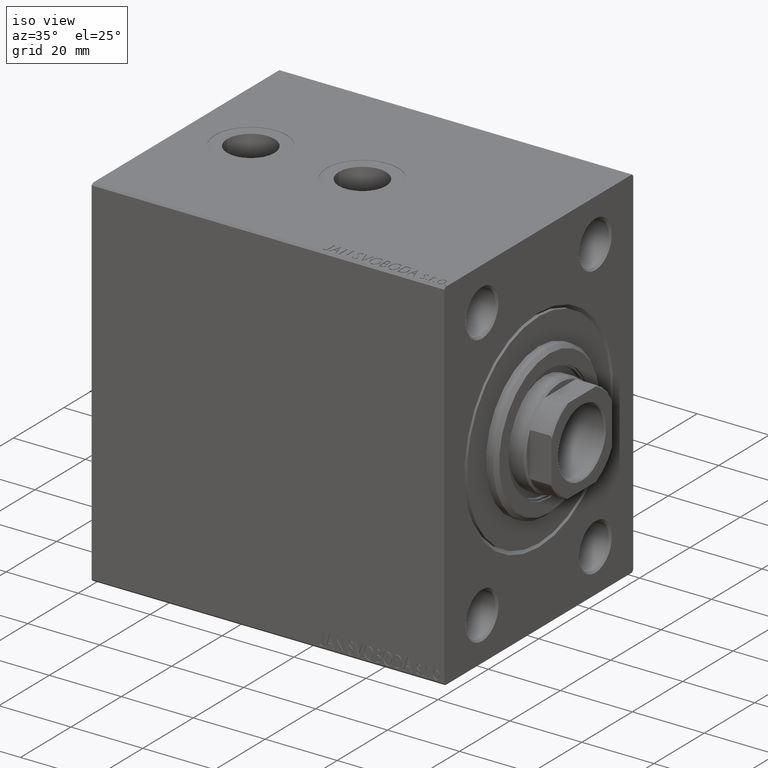
[diagram: clean part render]
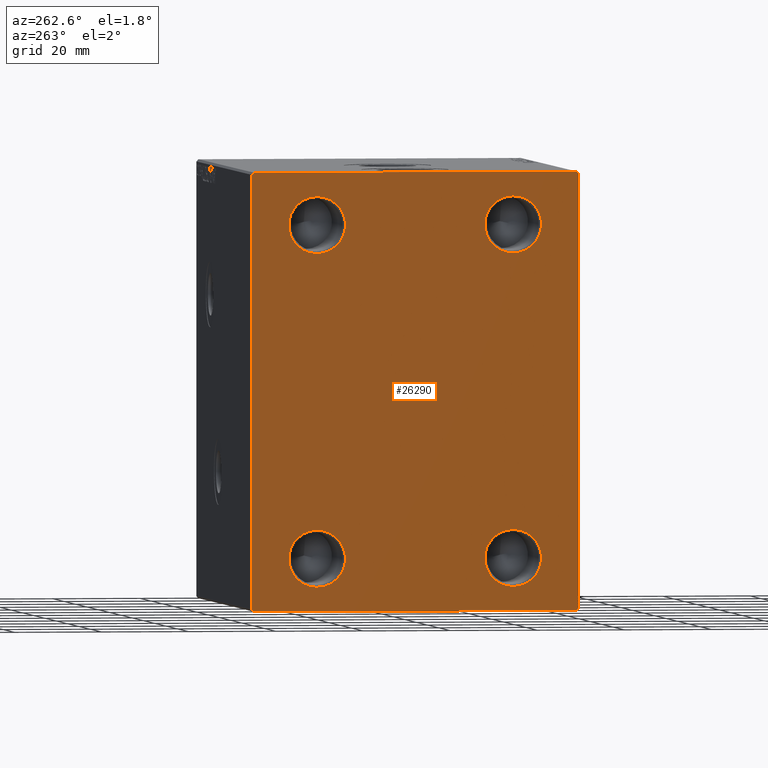
[diagram: tour spotlight — one face highlighted and labeled with its STEP entity id]
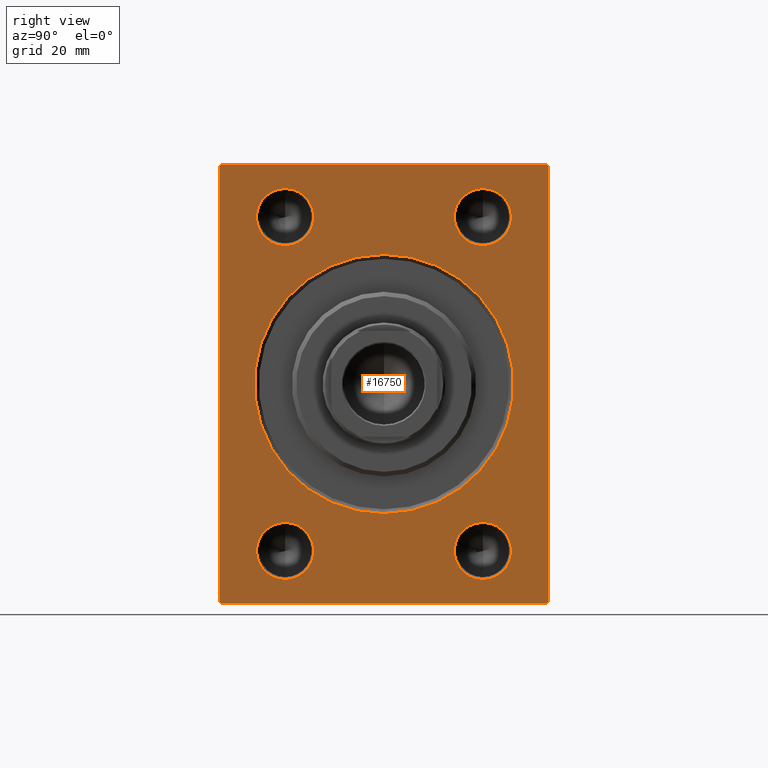
[diagram: tour spotlight — one face highlighted and labeled with its STEP entity id]
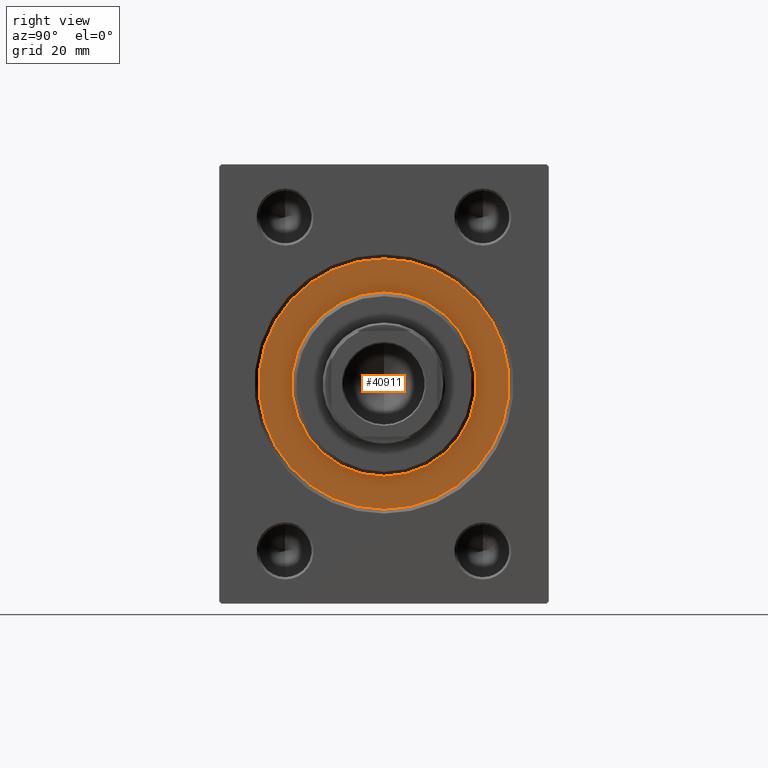
[diagram: tour spotlight — one face highlighted and labeled with its STEP entity id]
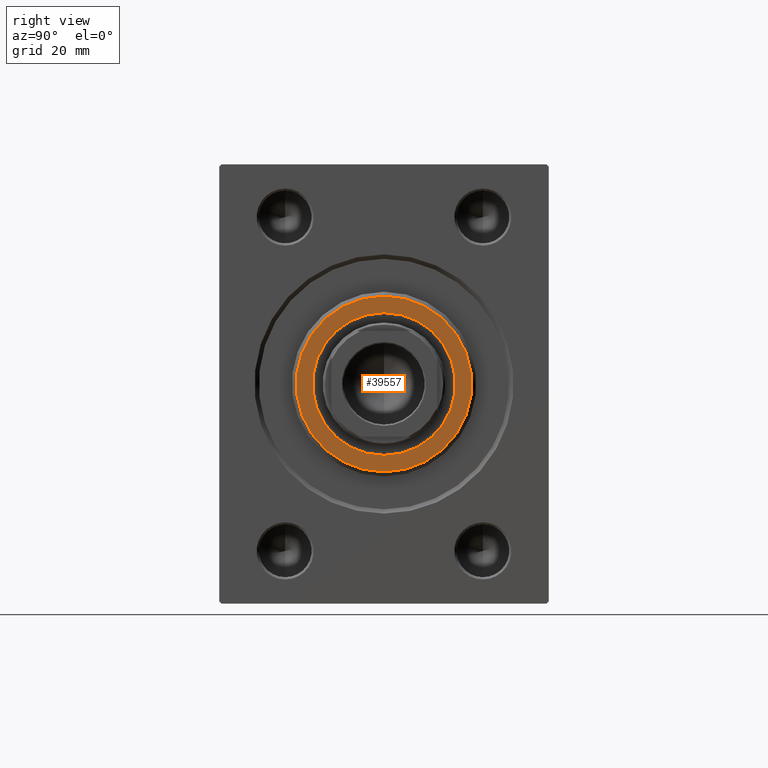
[diagram: tour spotlight — one face highlighted and labeled with its STEP entity id]
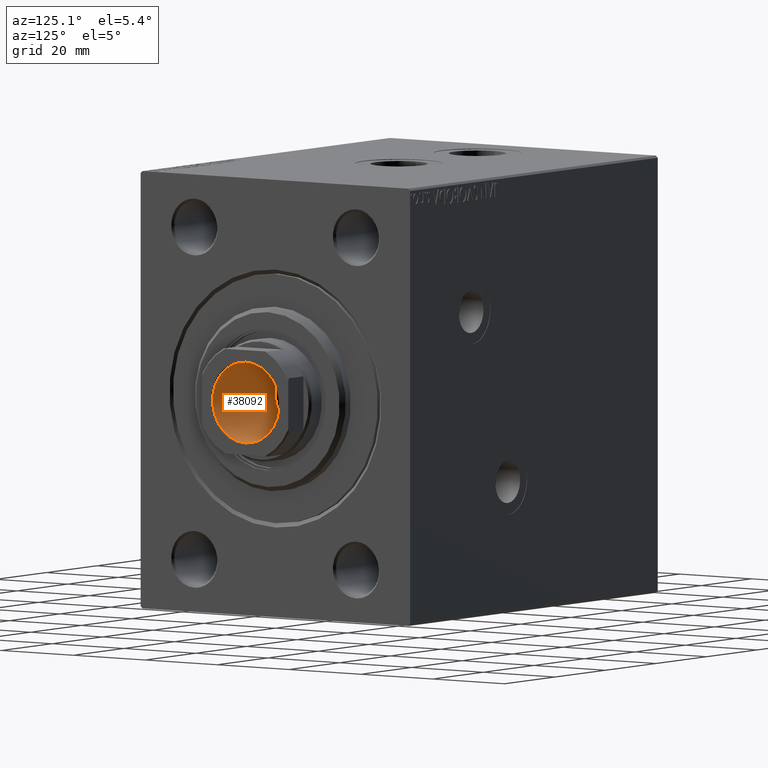
[diagram: tour spotlight — one face highlighted and labeled with its STEP entity id]
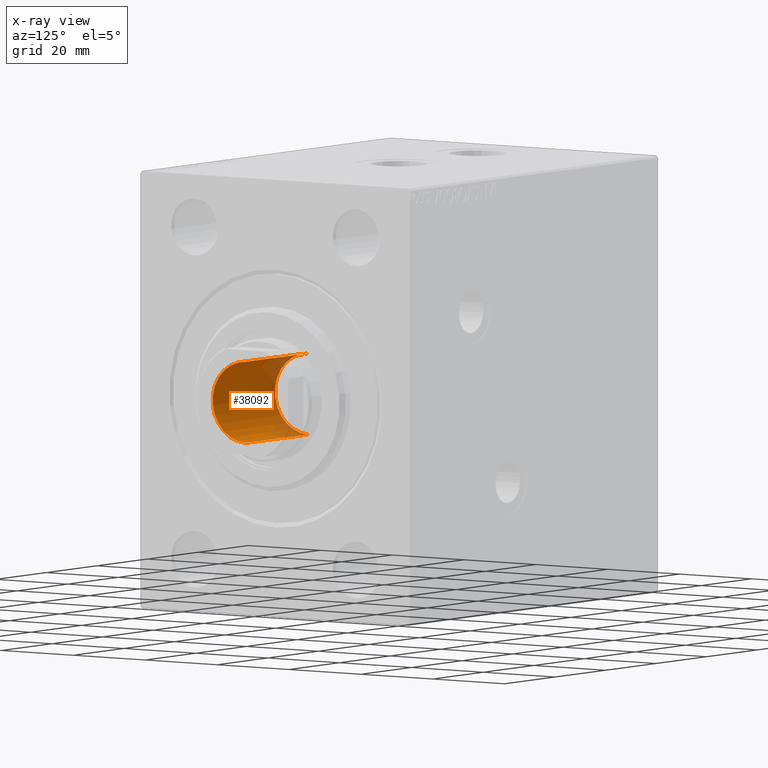
[diagram: x-ray of the same camera — body ghosted, this tour face saturated]
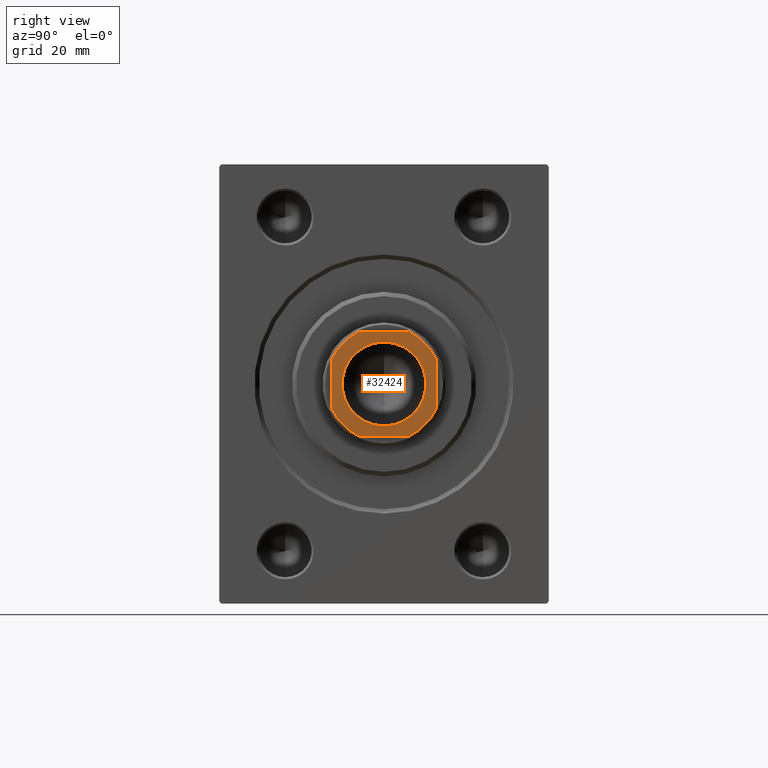
[diagram: tour spotlight — one face highlighted and labeled with its STEP entity id]
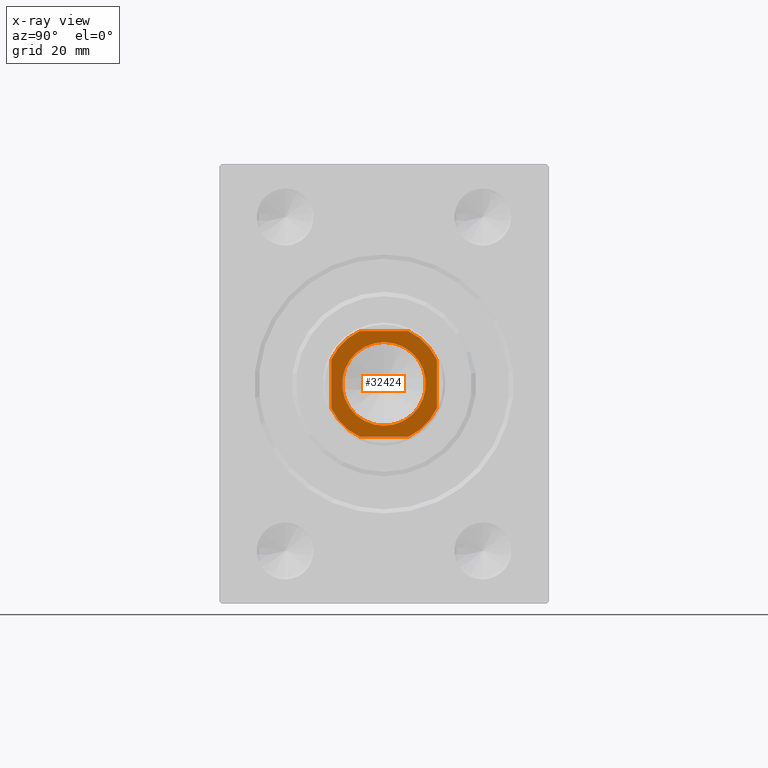
[diagram: x-ray of the same camera — body ghosted, this tour face saturated]
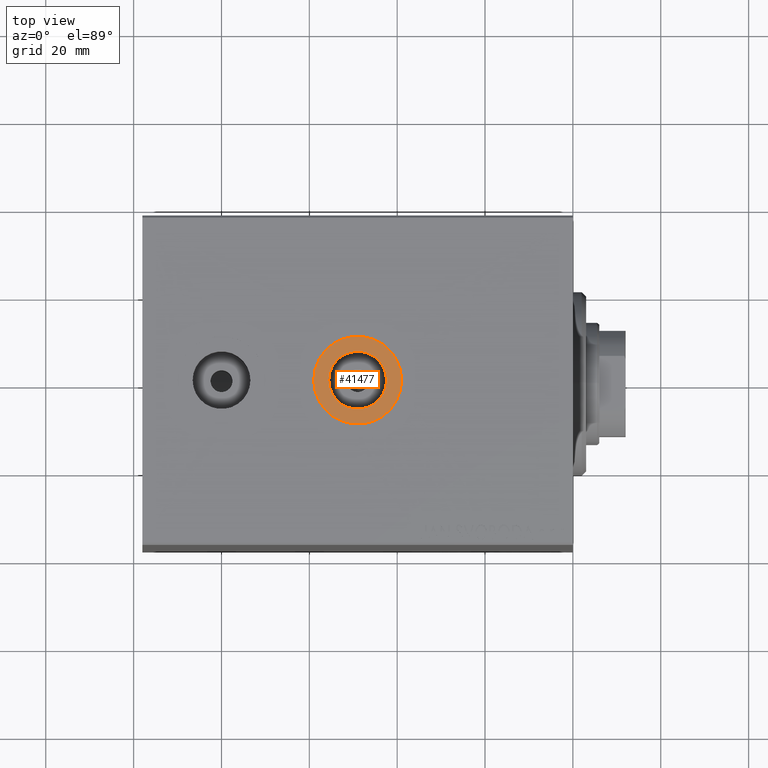
[diagram: tour spotlight — one face highlighted and labeled with its STEP entity id]
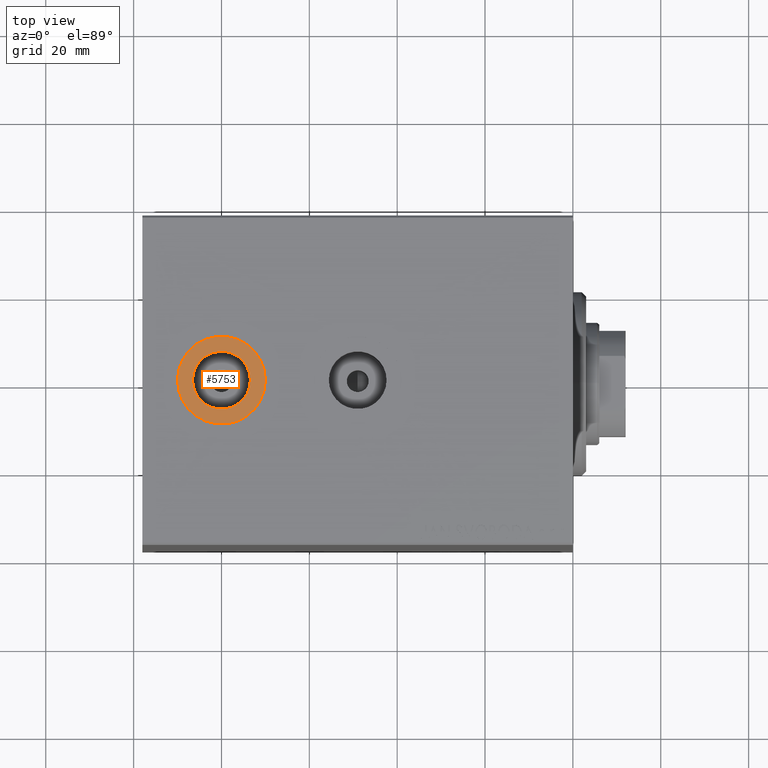
[diagram: tour spotlight — one face highlighted and labeled with its STEP entity id]
A machine part: a face-by-face anatomy tour. The part has 904 B-rep faces; the first image is the clean iso view, then the 8 largest visible faces are spotlighted one at a time (largest first), each with its STEP entity span.

Face 1 — auxiliary view, entity #26290. In plain terms, the highlighted planar face has unit normal (-1, -0, 0).
Definition (entity closure, byte-faithful):
#148 = ORIENTED_EDGE ( 'NONE', *, *, #13651, .T. ) ;
#178 = ORIENTED_EDGE ( 'NONE', *, *, #25590, .F. ) ;
#551 = VERTEX_POINT ( 'NONE', #9905 ) ;
#671 = VECTOR ( 'NONE', #26244, 1000.000000000000114 ) ;
#1176 = VECTOR ( 'NONE', #37887, 1000.000000000000114 ) ;
#1178 = VECTOR ( 'NONE', #15281, 1000.000000000000000 ) ;
#1989 = VECTOR ( 'NONE', #35915, 1000.000000000000000 ) ;
#2199 = VECTOR ( 'NONE', #16266, 1000.000000000000114 ) ;
#2321 = CARTESIAN_POINT ( 'NONE',  ( 98.00000000000000000, 22.49999999999999289, 44.49999999999999289 ) ) ;
#2489 = ORIENTED_EDGE ( 'NONE', *, *, #25415, .T. ) ;
#2725 = CARTESIAN_POINT ( 'NONE',  ( 98.00000000000000000, 22.49999999999999289, 31.50000000000000711 ) ) ;
#2865 = VERTEX_POINT ( 'NONE', #37324 ) ;
#2964 = AXIS2_PLACEMENT_3D ( 'NONE', #27240, #16566, #9957 ) ;
#3365 = ORIENTED_EDGE ( 'NONE', *, *, #25046, .T. ) ;
#3589 = VERTEX_POINT ( 'NONE', #2725 ) ;
#3683 = EDGE_LOOP ( 'NONE', ( #19829, #24425 ) ) ;
#4548 = CARTESIAN_POINT ( 'NONE',  ( 98.00000000000000000, 22.49999999999999289, -31.50000000000000711 ) ) ;
#5314 = VERTEX_POINT ( 'NONE', #11018 ) ;
#6032 = FACE_BOUND ( 'NONE', #19686, .T. ) ;
#6154 = CARTESIAN_POINT ( 'NONE',  ( 98.00000000000000000, -37.50000000000000000, 49.49999999999998579 ) ) ;
#6252 = CARTESIAN_POINT ( 'NONE',  ( 98.00000000000000000, 0.000000000000000000, 0.000000000000000000 ) ) ;
#7170 = LINE ( 'NONE', #7398, #36776 ) ;
#7398 = CARTESIAN_POINT ( 'NONE',  ( 98.00000000000000000, 37.49999999999998579, 50.00000000000001421 ) ) ;
#7442 = ORIENTED_EDGE ( 'NONE', *, *, #26249, .F. ) ;
#7579 = CARTESIAN_POINT ( 'NONE',  ( 98.00000000000000000, 22.49999999999999289, 38.00000000000000000 ) ) ;
#7681 = DIRECTION ( 'NONE',  ( 1.000000000000000000, -0.000000000000000000, -0.000000000000000000 ) ) ;
#8118 = CARTESIAN_POINT ( 'NONE',  ( 98.00000000000000000, 37.00000000000000000, -50.00000000000000000 ) ) ;
#8250 = DIRECTION ( 'NONE',  ( 1.000000000000000000, -0.000000000000000000, -0.000000000000000000 ) ) ;
#8788 = DIRECTION ( 'NONE',  ( 1.000000000000000000, -0.000000000000000000, -0.000000000000000000 ) ) ;
#8826 = DIRECTION ( 'NONE',  ( 0.000000000000000000, 0.000000000000000000, -1.000000000000000000 ) ) ;
#8870 = ORIENTED_EDGE ( 'NONE', *, *, #23806, .T. ) ;
#8928 = CARTESIAN_POINT ( 'NONE',  ( 98.00000000000000000, -22.50000000000000711, -38.00000000000000000 ) ) ;
#9215 = EDGE_LOOP ( 'NONE', ( #148, #8870, #44727, #34805, #3365, #25401, #19937, #2489 ) ) ;
#9657 = CARTESIAN_POINT ( 'NONE',  ( 98.00000000000000000, 43.49999999999998579, 43.49999999999998579 ) ) ;
#9905 = CARTESIAN_POINT ( 'NONE',  ( 98.00000000000000000, -22.50000000000000711, 31.50000000000000711 ) ) ;
#9957 = DIRECTION ( 'NONE',  ( 0.000000000000000000, 0.000000000000000000, -1.000000000000000000 ) ) ;
#10145 = EDGE_CURVE ( 'NONE', #24226, #2865, #32114, .T. ) ;
#10703 = AXIS2_PLACEMENT_3D ( 'NONE', #14506, #7681, #32030 ) ;
#11018 = CARTESIAN_POINT ( 'NONE',  ( 98.00000000000000000, -22.50000000000000711, -31.50000000000000711 ) ) ;
#11593 = LINE ( 'NONE', #26137, #1989 ) ;
#11868 = CARTESIAN_POINT ( 'NONE',  ( 98.00000000000000000, -37.50000000000000000, 49.99999999999998579 ) ) ;
#12374 = CARTESIAN_POINT ( 'NONE',  ( 98.00000000000000000, -43.49999999999999289, 43.49999999999999289 ) ) ;
#13085 = PLANE ( 'NONE',  #41427 ) ;
#13304 = DIRECTION ( 'NONE',  ( 1.000000000000000000, 0.000000000000000000, 0.000000000000000000 ) ) ;
#13344 = CARTESIAN_POINT ( 'NONE',  ( 98.00000000000000000, 36.99999999999997158, 50.00000000000001421 ) ) ;
#13651 = EDGE_CURVE ( 'NONE', #22449, #26635, #7170, .T. ) ;
#13660 = EDGE_CURVE ( 'NONE', #42424, #21911, #34695, .T. ) ;
#14009 = DIRECTION ( 'NONE',  ( 0.000000000000000000, 0.000000000000000000, -1.000000000000000000 ) ) ;
#14506 = CARTESIAN_POINT ( 'NONE',  ( 98.00000000000000000, 22.49999999999999289, 38.00000000000000000 ) ) ;
#14716 = ORIENTED_EDGE ( 'NONE', *, *, #20431, .F. ) ;
#15127 = VERTEX_POINT ( 'NONE', #4548 ) ;
#15281 = DIRECTION ( 'NONE',  ( 0.000000000000000000, 0.000000000000000000, -1.000000000000000000 ) ) ;
#16266 = DIRECTION ( 'NONE',  ( -0.000000000000000000, -0.7071067811865474617, 0.7071067811865474617 ) ) ;
#16313 = VERTEX_POINT ( 'NONE', #43006 ) ;
#16362 = VERTEX_POINT ( 'NONE', #18893 ) ;
#16566 = DIRECTION ( 'NONE',  ( 1.000000000000000000, -0.000000000000000000, -0.000000000000000000 ) ) ;
#17022 = VERTEX_POINT ( 'NONE', #19437 ) ;
#17246 = EDGE_CURVE ( 'NONE', #5314, #17022, #28125, .T. ) ;
#17405 = CARTESIAN_POINT ( 'NONE',  ( 98.00000000000000000, 43.50000000000000711, -43.50000000000000711 ) ) ;
#17416 = VERTEX_POINT ( 'NONE', #2321 ) ;
#17421 = CARTESIAN_POINT ( 'NONE',  ( 98.00000000000000000, -22.50000000000000711, 38.00000000000000000 ) ) ;
#17462 = CIRCLE ( 'NONE', #34207, 6.499999999999992006 ) ;
#18727 = ORIENTED_EDGE ( 'NONE', *, *, #31053, .F. ) ;
#18893 = CARTESIAN_POINT ( 'NONE',  ( 98.00000000000000000, -22.50000000000000711, 44.49999999999999289 ) ) ;
#19362 = VERTEX_POINT ( 'NONE', #38840 ) ;
#19437 = CARTESIAN_POINT ( 'NONE',  ( 98.00000000000000000, -22.50000000000000711, -44.49999999999999289 ) ) ;
#19665 = CIRCLE ( 'NONE', #20366, 6.499999999999992006 ) ;
#19686 = EDGE_LOOP ( 'NONE', ( #178, #41421 ) ) ;
#19829 = ORIENTED_EDGE ( 'NONE', *, *, #17246, .F. ) ;
#19901 = FACE_BOUND ( 'NONE', #34888, .T. ) ;
#19937 = ORIENTED_EDGE ( 'NONE', *, *, #37677, .T. ) ;
#20366 = AXIS2_PLACEMENT_3D ( 'NONE', #39941, #8788, #22647 ) ;
#20431 = EDGE_CURVE ( 'NONE', #551, #16362, #37676, .T. ) ;
#20735 = CARTESIAN_POINT ( 'NONE',  ( 98.00000000000000000, -43.50000000000000711, -43.50000000000000711 ) ) ;
#21448 = DIRECTION ( 'NONE',  ( 1.000000000000000000, -0.000000000000000000, -0.000000000000000000 ) ) ;
#21911 = VERTEX_POINT ( 'NONE', #37900 ) ;
#22449 = VERTEX_POINT ( 'NONE', #13344 ) ;
#22514 = EDGE_CURVE ( 'NONE', #16362, #551, #38437, .T. ) ;
#22575 = CIRCLE ( 'NONE', #2964, 6.499999999999992006 ) ;
#22647 = DIRECTION ( 'NONE',  ( 0.000000000000000000, 0.000000000000000000, -1.000000000000000000 ) ) ;
#22873 = LINE ( 'NONE', #20735, #26669 ) ;
#23085 = FACE_BOUND ( 'NONE', #29917, .T. ) ;
#23806 = EDGE_CURVE ( 'NONE', #26635, #24226, #43538, .T. ) ;
#24029 = DIRECTION ( 'NONE',  ( 1.000000000000000000, -0.000000000000000000, -0.000000000000000000 ) ) ;
#24226 = VERTEX_POINT ( 'NONE', #6154 ) ;
#24425 = ORIENTED_EDGE ( 'NONE', *, *, #40444, .F. ) ;
#24494 = CIRCLE ( 'NONE', #10703, 6.499999999999992006 ) ;
#25046 = EDGE_CURVE ( 'NONE', #16313, #42424, #25193, .T. ) ;
#25193 = LINE ( 'NONE', #25883, #34876 ) ;
#25401 = ORIENTED_EDGE ( 'NONE', *, *, #13660, .T. ) ;
#25415 = EDGE_CURVE ( 'NONE', #38652, #22449, #36963, .T. ) ;
#25590 = EDGE_CURVE ( 'NONE', #17416, #3589, #17462, .T. ) ;
#25883 = CARTESIAN_POINT ( 'NONE',  ( 98.00000000000000000, -37.50000000000000000, -50.00000000000001421 ) ) ;
#26137 = CARTESIAN_POINT ( 'NONE',  ( 98.00000000000000000, 37.50000000000000000, -50.00000000000000000 ) ) ;
#26244 = DIRECTION ( 'NONE',  ( 0.000000000000000000, -0.7071067811865474617, -0.7071067811865474617 ) ) ;
#26249 = EDGE_CURVE ( 'NONE', #15127, #19362, #19665, .T. ) ;
#26290 = ADVANCED_FACE ( 'NONE', ( #6032, #19901, #33784, #23085, #44252 ), #13085, .T. ) ;
#26328 = CARTESIAN_POINT ( 'NONE',  ( 98.00000000000000000, -22.50000000000000711, 38.00000000000000000 ) ) ;
#26635 = VERTEX_POINT ( 'NONE', #39604 ) ;
#26669 = VECTOR ( 'NONE', #29721, 1000.000000000000114 ) ;
#26714 = AXIS2_PLACEMENT_3D ( 'NONE', #8928, #8250, #42822 ) ;
#27171 = DIRECTION ( 'NONE',  ( 0.000000000000000000, 0.000000000000000000, -1.000000000000000000 ) ) ;
#27240 = CARTESIAN_POINT ( 'NONE',  ( 98.00000000000000000, 22.49999999999999289, -38.00000000000000000 ) ) ;
#27453 = CARTESIAN_POINT ( 'NONE',  ( 98.00000000000000000, -22.50000000000000711, -38.00000000000000000 ) ) ;
#28125 = CIRCLE ( 'NONE', #26714, 6.499999999999992006 ) ;
#28326 = DIRECTION ( 'NONE',  ( 0.000000000000000000, -1.000000000000000000, -3.700743415417189125E-16 ) ) ;
#29721 = DIRECTION ( 'NONE',  ( -0.000000000000000000, 0.7071067811865474617, -0.7071067811865474617 ) ) ;
#29917 = EDGE_LOOP ( 'NONE', ( #7442, #18727 ) ) ;
#29960 = DIRECTION ( 'NONE',  ( 1.000000000000000000, -0.000000000000000000, -0.000000000000000000 ) ) ;
#31053 = EDGE_CURVE ( 'NONE', #19362, #15127, #22575, .T. ) ;
#31235 = CARTESIAN_POINT ( 'NONE',  ( 98.00000000000000000, 37.49999999999998579, 49.50000000000000000 ) ) ;
#32030 = DIRECTION ( 'NONE',  ( 0.000000000000000000, 0.000000000000000000, -1.000000000000000000 ) ) ;
#32114 = LINE ( 'NONE', #11868, #1178 ) ;
#32208 = DIRECTION ( 'NONE',  ( 0.000000000000000000, 0.000000000000000000, -1.000000000000000000 ) ) ;
#33340 = AXIS2_PLACEMENT_3D ( 'NONE', #26328, #29960, #8826 ) ;
#33784 = FACE_BOUND ( 'NONE', #3683, .T. ) ;
#34207 = AXIS2_PLACEMENT_3D ( 'NONE', #7579, #21448, #42606 ) ;
#34695 = LINE ( 'NONE', #17405, #1176 ) ;
#34736 = CIRCLE ( 'NONE', #44907, 6.499999999999992006 ) ;
#34805 = ORIENTED_EDGE ( 'NONE', *, *, #38032, .T. ) ;
#34876 = VECTOR ( 'NONE', #39756, 1000.000000000000000 ) ;
#34888 = EDGE_LOOP ( 'NONE', ( #39754, #14716 ) ) ;
#35915 = DIRECTION ( 'NONE',  ( 0.000000000000000000, -1.387778780781445429E-16, 1.000000000000000000 ) ) ;
#36776 = VECTOR ( 'NONE', #28326, 1000.000000000000000 ) ;
#36963 = LINE ( 'NONE', #9657, #2199 ) ;
#37005 = AXIS2_PLACEMENT_3D ( 'NONE', #17421, #38567, #32208 ) ;
#37324 = CARTESIAN_POINT ( 'NONE',  ( 98.00000000000000000, -37.50000000000000000, -49.50000000000001421 ) ) ;
#37676 = CIRCLE ( 'NONE', #33340, 6.499999999999992006 ) ;
#37677 = EDGE_CURVE ( 'NONE', #21911, #38652, #11593, .T. ) ;
#37887 = DIRECTION ( 'NONE',  ( -0.000000000000000000, 0.7071067811865474617, 0.7071067811865474617 ) ) ;
#37900 = CARTESIAN_POINT ( 'NONE',  ( 98.00000000000000000, 37.50000000000000000, -49.50000000000000000 ) ) ;
#38032 = EDGE_CURVE ( 'NONE', #2865, #16313, #22873, .T. ) ;
#38437 = CIRCLE ( 'NONE', #37005, 6.499999999999992006 ) ;
#38567 = DIRECTION ( 'NONE',  ( 1.000000000000000000, -0.000000000000000000, -0.000000000000000000 ) ) ;
#38652 = VERTEX_POINT ( 'NONE', #31235 ) ;
#38840 = CARTESIAN_POINT ( 'NONE',  ( 98.00000000000000000, 22.49999999999999289, -44.49999999999999289 ) ) ;
#39484 = EDGE_CURVE ( 'NONE', #3589, #17416, #24494, .T. ) ;
#39604 = CARTESIAN_POINT ( 'NONE',  ( 98.00000000000000000, -37.00000000000000000, 49.99999999999998579 ) ) ;
#39754 = ORIENTED_EDGE ( 'NONE', *, *, #22514, .F. ) ;
#39756 = DIRECTION ( 'NONE',  ( 0.000000000000000000, 1.000000000000000000, 1.850371707708594316E-16 ) ) ;
#39941 = CARTESIAN_POINT ( 'NONE',  ( 98.00000000000000000, 22.49999999999999289, -38.00000000000000000 ) ) ;
#40444 = EDGE_CURVE ( 'NONE', #17022, #5314, #34736, .T. ) ;
#41421 = ORIENTED_EDGE ( 'NONE', *, *, #39484, .F. ) ;
#41427 = AXIS2_PLACEMENT_3D ( 'NONE', #6252, #13304, #27171 ) ;
#42424 = VERTEX_POINT ( 'NONE', #8118 ) ;
#42606 = DIRECTION ( 'NONE',  ( 0.000000000000000000, 0.000000000000000000, -1.000000000000000000 ) ) ;
#42822 = DIRECTION ( 'NONE',  ( 0.000000000000000000, 0.000000000000000000, -1.000000000000000000 ) ) ;
#43006 = CARTESIAN_POINT ( 'NONE',  ( 98.00000000000000000, -37.00000000000000000, -50.00000000000001421 ) ) ;
#43538 = LINE ( 'NONE', #12374, #671 ) ;
#44252 = FACE_OUTER_BOUND ( 'NONE', #9215, .T. ) ;
#44727 = ORIENTED_EDGE ( 'NONE', *, *, #10145, .T. ) ;
#44907 = AXIS2_PLACEMENT_3D ( 'NONE', #27453, #24029, #14009 ) ;

Face 2 — right view, entity #16750. In plain terms, the highlighted planar face has unit normal (-1, -0, 0).
Definition (entity closure, byte-faithful):
#206 = DIRECTION ( 'NONE',  ( 1.000000000000000000, 0.000000000000000000, 0.000000000000000000 ) ) ;
#485 = LINE ( 'NONE', #38039, #37271 ) ;
#820 = DIRECTION ( 'NONE',  ( 1.000000000000000000, 0.000000000000000000, 0.000000000000000000 ) ) ;
#880 = EDGE_CURVE ( 'NONE', #35565, #33778, #485, .T. ) ;
#1281 = DIRECTION ( 'NONE',  ( 0.000000000000000000, 0.000000000000000000, -1.000000000000000000 ) ) ;
#1442 = EDGE_CURVE ( 'NONE', #9111, #40023, #6771, .T. ) ;
#1652 = DIRECTION ( 'NONE',  ( 0.000000000000000000, 0.000000000000000000, -1.000000000000000000 ) ) ;
#2591 = EDGE_CURVE ( 'NONE', #26758, #27205, #10403, .T. ) ;
#2626 = CARTESIAN_POINT ( 'NONE',  ( 0.000000000000000000, 37.50000000000000000, -49.50000000000000000 ) ) ;
#2697 = AXIS2_PLACEMENT_3D ( 'NONE', #13810, #27687, #24249 ) ;
#3060 = DIRECTION ( 'NONE',  ( 0.000000000000000000, -1.000000000000000000, -3.700743415417189125E-16 ) ) ;
#3087 = CARTESIAN_POINT ( 'NONE',  ( 0.000000000000000000, 22.49999999999999289, -38.00000000000000000 ) ) ;
#3116 = CARTESIAN_POINT ( 'NONE',  ( 0.000000000000000000, 0.000000000000000000, 0.000000000000000000 ) ) ;
#3117 = EDGE_CURVE ( 'NONE', #35085, #38449, #34362, .T. ) ;
#3186 = CARTESIAN_POINT ( 'NONE',  ( 0.000000000000000000, -37.00000000000000000, -50.00000000000001421 ) ) ;
#3454 = EDGE_CURVE ( 'NONE', #25527, #27227, #21858, .T. ) ;
#4152 = AXIS2_PLACEMENT_3D ( 'NONE', #24022, #12912, #23570 ) ;
#4533 = AXIS2_PLACEMENT_3D ( 'NONE', #7276, #206, #14089 ) ;
#4698 = CARTESIAN_POINT ( 'NONE',  ( 0.000000000000000000, -22.50000000000000711, 38.00000000000000000 ) ) ;
#4842 = ORIENTED_EDGE ( 'NONE', *, *, #13544, .T. ) ;
#5119 = LINE ( 'NONE', #16033, #12913 ) ;
#5354 = AXIS2_PLACEMENT_3D ( 'NONE', #36704, #22384, #25346 ) ;
#5622 = DIRECTION ( 'NONE',  ( 1.000000000000000000, 0.000000000000000000, 0.000000000000000000 ) ) ;
#6468 = CARTESIAN_POINT ( 'NONE',  ( 0.000000000000000000, -37.50000000000000000, 49.49999999999998579 ) ) ;
#6700 = CARTESIAN_POINT ( 'NONE',  ( 0.000000000000000000, 36.99999999999997158, 50.00000000000001421 ) ) ;
#6771 = CIRCLE ( 'NONE', #34378, 29.50000000000001421 ) ;
#7020 = CIRCLE ( 'NONE', #36815, 6.499999999999992006 ) ;
#7056 = CIRCLE ( 'NONE', #26685, 6.499999999999992006 ) ;
#7218 = ORIENTED_EDGE ( 'NONE', *, *, #27711, .T. ) ;
#7276 = CARTESIAN_POINT ( 'NONE',  ( 0.000000000000000000, 22.49999999999999289, -38.00000000000000000 ) ) ;
#7449 = CIRCLE ( 'NONE', #4533, 6.499999999999992006 ) ;
#7904 = ORIENTED_EDGE ( 'NONE', *, *, #3117, .T. ) ;
#8064 = CARTESIAN_POINT ( 'NONE',  ( 0.000000000000000000, -22.50000000000000711, 31.50000000000000711 ) ) ;
#8585 = VERTEX_POINT ( 'NONE', #42980 ) ;
#8681 = CARTESIAN_POINT ( 'NONE',  ( 0.000000000000000000, -22.50000000000000711, 44.49999999999999289 ) ) ;
#8732 = CARTESIAN_POINT ( 'NONE',  ( 0.000000000000000000, 0.000000000000000000, 29.50000000000001421 ) ) ;
#8828 = AXIS2_PLACEMENT_3D ( 'NONE', #10799, #41288, #30822 ) ;
#9111 = VERTEX_POINT ( 'NONE', #8732 ) ;
#9710 = FACE_BOUND ( 'NONE', #31248, .T. ) ;
#9717 = VERTEX_POINT ( 'NONE', #10551 ) ;
#10158 = FACE_BOUND ( 'NONE', #15199, .T. ) ;
#10330 = CARTESIAN_POINT ( 'NONE',  ( 0.000000000000000000, 37.49999999999998579, 50.00000000000001421 ) ) ;
#10364 = EDGE_CURVE ( 'NONE', #38706, #43909, #7020, .T. ) ;
#10403 = CIRCLE ( 'NONE', #5354, 6.499999999999992006 ) ;
#10551 = CARTESIAN_POINT ( 'NONE',  ( 0.000000000000000000, 22.49999999999999289, -31.50000000000000711 ) ) ;
#10689 = AXIS2_PLACEMENT_3D ( 'NONE', #32575, #12552, #36429 ) ;
#10799 = CARTESIAN_POINT ( 'NONE',  ( 0.000000000000000000, 0.000000000000000000, 0.000000000000000000 ) ) ;
#11007 = DIRECTION ( 'NONE',  ( 1.000000000000000000, 0.000000000000000000, 0.000000000000000000 ) ) ;
#11338 = VERTEX_POINT ( 'NONE', #37931 ) ;
#11552 = EDGE_CURVE ( 'NONE', #27205, #26758, #7056, .T. ) ;
#12193 = EDGE_CURVE ( 'NONE', #43909, #38706, #27387, .T. ) ;
#12443 = ORIENTED_EDGE ( 'NONE', *, *, #1442, .T. ) ;
#12552 = DIRECTION ( 'NONE',  ( 1.000000000000000000, 0.000000000000000000, 0.000000000000000000 ) ) ;
#12912 = DIRECTION ( 'NONE',  ( 1.000000000000000000, 0.000000000000000000, 0.000000000000000000 ) ) ;
#12913 = VECTOR ( 'NONE', #32868, 1000.000000000000000 ) ;
#13130 = FACE_BOUND ( 'NONE', #19434, .T. ) ;
#13343 = PLANE ( 'NONE',  #4152 ) ;
#13425 = DIRECTION ( 'NONE',  ( 0.000000000000000000, 0.000000000000000000, -1.000000000000000000 ) ) ;
#13544 = EDGE_CURVE ( 'NONE', #9717, #33500, #19340, .T. ) ;
#13692 = CARTESIAN_POINT ( 'NONE',  ( 0.000000000000000000, -37.00000000000000000, -50.00000000000001421 ) ) ;
#13715 = DIRECTION ( 'NONE',  ( 0.000000000000000000, -0.7071067811865474617, -0.7071067811865474617 ) ) ;
#13810 = CARTESIAN_POINT ( 'NONE',  ( 0.000000000000000000, -22.50000000000000711, -38.00000000000000000 ) ) ;
#14064 = CARTESIAN_POINT ( 'NONE',  ( 0.000000000000000000, 36.99999999999997158, 50.00000000000001421 ) ) ;
#14089 = DIRECTION ( 'NONE',  ( 0.000000000000000000, 0.000000000000000000, -1.000000000000000000 ) ) ;
#14247 = ORIENTED_EDGE ( 'NONE', *, *, #2591, .T. ) ;
#15199 = EDGE_LOOP ( 'NONE', ( #14247, #27335 ) ) ;
#15482 = CARTESIAN_POINT ( 'NONE',  ( 0.000000000000000000, 3.612708057484693970E-15, -29.50000000000001421 ) ) ;
#16033 = CARTESIAN_POINT ( 'NONE',  ( 0.000000000000000000, -37.50000000000000000, -50.00000000000001421 ) ) ;
#16045 = EDGE_CURVE ( 'NONE', #25527, #38449, #36231, .T. ) ;
#16470 = VECTOR ( 'NONE', #3060, 1000.000000000000000 ) ;
#16750 = ADVANCED_FACE ( 'NONE', ( #23795, #41311, #10158, #13130, #9710, #23138 ), #13343, .F. ) ;
#17031 = EDGE_CURVE ( 'NONE', #35085, #33778, #5119, .T. ) ;
#17136 = CARTESIAN_POINT ( 'NONE',  ( 0.000000000000000000, 22.49999999999999289, 31.50000000000000711 ) ) ;
#17279 = DIRECTION ( 'NONE',  ( 1.000000000000000000, 0.000000000000000000, 0.000000000000000000 ) ) ;
#17819 = CARTESIAN_POINT ( 'NONE',  ( 0.000000000000000000, -22.50000000000000711, -38.00000000000000000 ) ) ;
#18850 = EDGE_CURVE ( 'NONE', #35565, #11338, #40199, .T. ) ;
#19168 = CARTESIAN_POINT ( 'NONE',  ( 0.000000000000000000, -37.50000000000000000, 49.99999999999998579 ) ) ;
#19340 = CIRCLE ( 'NONE', #35404, 6.499999999999992006 ) ;
#19434 = EDGE_LOOP ( 'NONE', ( #19547, #24127 ) ) ;
#19493 = DIRECTION ( 'NONE',  ( 0.000000000000000000, 0.000000000000000000, -1.000000000000000000 ) ) ;
#19547 = ORIENTED_EDGE ( 'NONE', *, *, #12193, .T. ) ;
#21629 = VECTOR ( 'NONE', #27822, 1000.000000000000000 ) ;
#21769 = VECTOR ( 'NONE', #38296, 1000.000000000000114 ) ;
#21858 = LINE ( 'NONE', #31868, #32988 ) ;
#22384 = DIRECTION ( 'NONE',  ( 1.000000000000000000, 0.000000000000000000, 0.000000000000000000 ) ) ;
#22616 = CIRCLE ( 'NONE', #8828, 29.50000000000001421 ) ;
#22917 = ORIENTED_EDGE ( 'NONE', *, *, #880, .T. ) ;
#23138 = FACE_OUTER_BOUND ( 'NONE', #30999, .T. ) ;
#23309 = CARTESIAN_POINT ( 'NONE',  ( 0.000000000000000000, -22.50000000000000711, -31.50000000000000711 ) ) ;
#23570 = DIRECTION ( 'NONE',  ( 0.000000000000000000, 0.000000000000000000, -1.000000000000000000 ) ) ;
#23655 = EDGE_CURVE ( 'NONE', #34230, #11338, #37863, .T. ) ;
#23795 = FACE_BOUND ( 'NONE', #39979, .T. ) ;
#24022 = CARTESIAN_POINT ( 'NONE',  ( 0.000000000000000000, 0.000000000000000000, 0.000000000000000000 ) ) ;
#24127 = ORIENTED_EDGE ( 'NONE', *, *, #10364, .T. ) ;
#24249 = DIRECTION ( 'NONE',  ( 0.000000000000000000, 0.000000000000000000, -1.000000000000000000 ) ) ;
#25186 = CIRCLE ( 'NONE', #33913, 6.499999999999992006 ) ;
#25346 = DIRECTION ( 'NONE',  ( 0.000000000000000000, 0.000000000000000000, -1.000000000000000000 ) ) ;
#25527 = VERTEX_POINT ( 'NONE', #6468 ) ;
#26282 = VERTEX_POINT ( 'NONE', #23309 ) ;
#26685 = AXIS2_PLACEMENT_3D ( 'NONE', #4698, #820, #1281 ) ;
#26758 = VERTEX_POINT ( 'NONE', #8681 ) ;
#27205 = VERTEX_POINT ( 'NONE', #8064 ) ;
#27227 = VERTEX_POINT ( 'NONE', #35800 ) ;
#27335 = ORIENTED_EDGE ( 'NONE', *, *, #11552, .T. ) ;
#27387 = CIRCLE ( 'NONE', #10689, 6.499999999999992006 ) ;
#27687 = DIRECTION ( 'NONE',  ( 1.000000000000000000, 0.000000000000000000, 0.000000000000000000 ) ) ;
#27711 = EDGE_CURVE ( 'NONE', #40023, #9111, #22616, .T. ) ;
#27822 = DIRECTION ( 'NONE',  ( 0.000000000000000000, -1.387778780781445429E-16, 1.000000000000000000 ) ) ;
#28567 = CARTESIAN_POINT ( 'NONE',  ( 0.000000000000000000, 37.00000000000000000, -50.00000000000000000 ) ) ;
#29749 = CARTESIAN_POINT ( 'NONE',  ( 0.000000000000000000, 37.50000000000000000, -50.00000000000000000 ) ) ;
#30268 = ORIENTED_EDGE ( 'NONE', *, *, #23655, .T. ) ;
#30285 = VECTOR ( 'NONE', #1652, 1000.000000000000000 ) ;
#30588 = LINE ( 'NONE', #10330, #16470 ) ;
#30822 = DIRECTION ( 'NONE',  ( 0.000000000000000000, 0.000000000000000000, -1.000000000000000000 ) ) ;
#30999 = EDGE_LOOP ( 'NONE', ( #40771, #31234, #33972, #30268, #39968, #22917, #32210, #7904 ) ) ;
#31222 = EDGE_LOOP ( 'NONE', ( #35482, #39268 ) ) ;
#31234 = ORIENTED_EDGE ( 'NONE', *, *, #3454, .T. ) ;
#31248 = EDGE_LOOP ( 'NONE', ( #4842, #39188 ) ) ;
#31726 = EDGE_CURVE ( 'NONE', #33500, #9717, #7449, .T. ) ;
#31868 = CARTESIAN_POINT ( 'NONE',  ( 0.000000000000000000, -37.50000000000000000, 49.49999999999998579 ) ) ;
#32210 = ORIENTED_EDGE ( 'NONE', *, *, #17031, .F. ) ;
#32575 = CARTESIAN_POINT ( 'NONE',  ( 0.000000000000000000, 22.49999999999999289, 38.00000000000000000 ) ) ;
#32868 = DIRECTION ( 'NONE',  ( 0.000000000000000000, 1.000000000000000000, 1.850371707708594316E-16 ) ) ;
#32988 = VECTOR ( 'NONE', #38900, 1000.000000000000114 ) ;
#33500 = VERTEX_POINT ( 'NONE', #44558 ) ;
#33778 = VERTEX_POINT ( 'NONE', #28567 ) ;
#33842 = DIRECTION ( 'NONE',  ( 0.000000000000000000, 0.000000000000000000, -1.000000000000000000 ) ) ;
#33913 = AXIS2_PLACEMENT_3D ( 'NONE', #17819, #11007, #42614 ) ;
#33972 = ORIENTED_EDGE ( 'NONE', *, *, #36991, .F. ) ;
#34230 = VERTEX_POINT ( 'NONE', #14064 ) ;
#34362 = LINE ( 'NONE', #3186, #35869 ) ;
#34378 = AXIS2_PLACEMENT_3D ( 'NONE', #3116, #44089, #33842 ) ;
#35085 = VERTEX_POINT ( 'NONE', #13692 ) ;
#35404 = AXIS2_PLACEMENT_3D ( 'NONE', #3087, #5622, #19493 ) ;
#35482 = ORIENTED_EDGE ( 'NONE', *, *, #37029, .T. ) ;
#35565 = VERTEX_POINT ( 'NONE', #2626 ) ;
#35800 = CARTESIAN_POINT ( 'NONE',  ( 0.000000000000000000, -37.00000000000000000, 49.99999999999998579 ) ) ;
#35869 = VECTOR ( 'NONE', #38421, 1000.000000000000114 ) ;
#36231 = LINE ( 'NONE', #19168, #30285 ) ;
#36429 = DIRECTION ( 'NONE',  ( 0.000000000000000000, 0.000000000000000000, -1.000000000000000000 ) ) ;
#36704 = CARTESIAN_POINT ( 'NONE',  ( 0.000000000000000000, -22.50000000000000711, 38.00000000000000000 ) ) ;
#36815 = AXIS2_PLACEMENT_3D ( 'NONE', #44587, #17279, #13425 ) ;
#36991 = EDGE_CURVE ( 'NONE', #34230, #27227, #30588, .T. ) ;
#37029 = EDGE_CURVE ( 'NONE', #26282, #8585, #25186, .T. ) ;
#37182 = CARTESIAN_POINT ( 'NONE',  ( 0.000000000000000000, -37.50000000000000000, -49.50000000000001421 ) ) ;
#37271 = VECTOR ( 'NONE', #13715, 1000.000000000000114 ) ;
#37863 = LINE ( 'NONE', #6700, #21769 ) ;
#37895 = EDGE_CURVE ( 'NONE', #8585, #26282, #44841, .T. ) ;
#37931 = CARTESIAN_POINT ( 'NONE',  ( 0.000000000000000000, 37.49999999999998579, 49.50000000000000000 ) ) ;
#38039 = CARTESIAN_POINT ( 'NONE',  ( 0.000000000000000000, 37.50000000000000000, -49.50000000000000000 ) ) ;
#38296 = DIRECTION ( 'NONE',  ( -0.000000000000000000, 0.7071067811865474617, -0.7071067811865474617 ) ) ;
#38421 = DIRECTION ( 'NONE',  ( -0.000000000000000000, -0.7071067811865474617, 0.7071067811865474617 ) ) ;
#38449 = VERTEX_POINT ( 'NONE', #37182 ) ;
#38706 = VERTEX_POINT ( 'NONE', #17136 ) ;
#38900 = DIRECTION ( 'NONE',  ( -0.000000000000000000, 0.7071067811865474617, 0.7071067811865474617 ) ) ;
#39188 = ORIENTED_EDGE ( 'NONE', *, *, #31726, .T. ) ;
#39268 = ORIENTED_EDGE ( 'NONE', *, *, #37895, .T. ) ;
#39968 = ORIENTED_EDGE ( 'NONE', *, *, #18850, .F. ) ;
#39979 = EDGE_LOOP ( 'NONE', ( #12443, #7218 ) ) ;
#40023 = VERTEX_POINT ( 'NONE', #15482 ) ;
#40199 = LINE ( 'NONE', #29749, #21629 ) ;
#40771 = ORIENTED_EDGE ( 'NONE', *, *, #16045, .F. ) ;
#41174 = CARTESIAN_POINT ( 'NONE',  ( 0.000000000000000000, 22.49999999999999289, 44.49999999999999289 ) ) ;
#41288 = DIRECTION ( 'NONE',  ( 1.000000000000000000, 0.000000000000000000, 0.000000000000000000 ) ) ;
#41311 = FACE_BOUND ( 'NONE', #31222, .T. ) ;
#42614 = DIRECTION ( 'NONE',  ( 0.000000000000000000, 0.000000000000000000, -1.000000000000000000 ) ) ;
#42980 = CARTESIAN_POINT ( 'NONE',  ( 0.000000000000000000, -22.50000000000000711, -44.49999999999999289 ) ) ;
#43909 = VERTEX_POINT ( 'NONE', #41174 ) ;
#44089 = DIRECTION ( 'NONE',  ( 1.000000000000000000, 0.000000000000000000, 0.000000000000000000 ) ) ;
#44558 = CARTESIAN_POINT ( 'NONE',  ( 0.000000000000000000, 22.49999999999999289, -44.49999999999999289 ) ) ;
#44587 = CARTESIAN_POINT ( 'NONE',  ( 0.000000000000000000, 22.49999999999999289, 38.00000000000000000 ) ) ;
#44841 = CIRCLE ( 'NONE', #2697, 6.499999999999992006 ) ;

Face 3 — right view, entity #40911. In plain terms, the highlighted planar face has unit normal (-1, 0, 0).
Definition (entity closure, byte-faithful):
#188 = FACE_BOUND ( 'NONE', #39445, .T. ) ;
#4694 = CARTESIAN_POINT ( 'NONE',  ( 0.000000000000000000, 0.000000000000000000, 21.00000000000000000 ) ) ;
#4864 = CIRCLE ( 'NONE', #39695, 28.50000000000000000 ) ;
#7033 = PLANE ( 'NONE',  #44944 ) ;
#7076 = DIRECTION ( 'NONE',  ( 0.000000000000000000, 0.000000000000000000, -1.000000000000000000 ) ) ;
#9240 = DIRECTION ( 'NONE',  ( 0.000000000000000000, 0.000000000000000000, -1.000000000000000000 ) ) ;
#9628 = CARTESIAN_POINT ( 'NONE',  ( 0.000000000000000000, 2.571758278209441661E-15, -21.00000000000000000 ) ) ;
#10398 = DIRECTION ( 'NONE',  ( 0.000000000000000000, 0.000000000000000000, 1.000000000000000000 ) ) ;
#10508 = VERTEX_POINT ( 'NONE', #32968 ) ;
#10623 = EDGE_CURVE ( 'NONE', #39696, #10508, #4864, .T. ) ;
#12728 = ORIENTED_EDGE ( 'NONE', *, *, #36154, .F. ) ;
#12967 = AXIS2_PLACEMENT_3D ( 'NONE', #38224, #13683, #7076 ) ;
#13637 = FACE_OUTER_BOUND ( 'NONE', #14202, .T. ) ;
#13683 = DIRECTION ( 'NONE',  ( 1.000000000000000000, -0.000000000000000000, 0.000000000000000000 ) ) ;
#14202 = EDGE_LOOP ( 'NONE', ( #12728, #32328 ) ) ;
#14632 = CARTESIAN_POINT ( 'NONE',  ( 0.000000000000000000, 3.490243377569956456E-15, 28.50000000000000000 ) ) ;
#16523 = ORIENTED_EDGE ( 'NONE', *, *, #39978, .F. ) ;
#16704 = DIRECTION ( 'NONE',  ( -1.000000000000000000, 0.000000000000000000, 0.000000000000000000 ) ) ;
#21653 = CIRCLE ( 'NONE', #12967, 21.00000000000000000 ) ;
#24431 = AXIS2_PLACEMENT_3D ( 'NONE', #41028, #16704, #27616 ) ;
#24758 = DIRECTION ( 'NONE',  ( 0.000000000000000000, 0.000000000000000000, 1.000000000000000000 ) ) ;
#25953 = CIRCLE ( 'NONE', #43395, 21.00000000000000000 ) ;
#27616 = DIRECTION ( 'NONE',  ( 0.000000000000000000, 0.000000000000000000, 1.000000000000000000 ) ) ;
#29406 = ORIENTED_EDGE ( 'NONE', *, *, #38052, .F. ) ;
#30566 = VERTEX_POINT ( 'NONE', #9628 ) ;
#31099 = CARTESIAN_POINT ( 'NONE',  ( 0.000000000000000000, 0.000000000000000000, 0.000000000000000000 ) ) ;
#31320 = DIRECTION ( 'NONE',  ( -1.000000000000000000, 0.000000000000000000, 0.000000000000000000 ) ) ;
#32328 = ORIENTED_EDGE ( 'NONE', *, *, #10623, .F. ) ;
#32968 = CARTESIAN_POINT ( 'NONE',  ( 0.000000000000000000, 0.000000000000000000, -28.50000000000000000 ) ) ;
#35497 = VERTEX_POINT ( 'NONE', #4694 ) ;
#36154 = EDGE_CURVE ( 'NONE', #10508, #39696, #40468, .T. ) ;
#36756 = DIRECTION ( 'NONE',  ( 1.000000000000000000, -0.000000000000000000, 0.000000000000000000 ) ) ;
#37211 = CARTESIAN_POINT ( 'NONE',  ( 0.000000000000000000, 0.000000000000000000, 0.000000000000000000 ) ) ;
#38052 = EDGE_CURVE ( 'NONE', #35497, #30566, #25953, .T. ) ;
#38224 = CARTESIAN_POINT ( 'NONE',  ( 0.000000000000000000, 0.000000000000000000, 0.000000000000000000 ) ) ;
#39445 = EDGE_LOOP ( 'NONE', ( #29406, #16523 ) ) ;
#39695 = AXIS2_PLACEMENT_3D ( 'NONE', #31099, #31320, #10398 ) ;
#39696 = VERTEX_POINT ( 'NONE', #14632 ) ;
#39978 = EDGE_CURVE ( 'NONE', #30566, #35497, #21653, .T. ) ;
#40468 = CIRCLE ( 'NONE', #24431, 28.50000000000000000 ) ;
#40911 = ADVANCED_FACE ( 'NONE', ( #188, #13637 ), #7033, .F. ) ;
#41028 = CARTESIAN_POINT ( 'NONE',  ( 0.000000000000000000, 0.000000000000000000, 0.000000000000000000 ) ) ;
#41382 = CARTESIAN_POINT ( 'NONE',  ( 0.000000000000000000, 0.000000000000000000, 0.000000000000000000 ) ) ;
#42054 = DIRECTION ( 'NONE',  ( -1.000000000000000000, 0.000000000000000000, 0.000000000000000000 ) ) ;
#43395 = AXIS2_PLACEMENT_3D ( 'NONE', #37211, #36756, #9240 ) ;
#44944 = AXIS2_PLACEMENT_3D ( 'NONE', #41382, #42054, #24758 ) ;

Face 4 — right view, entity #39557. In plain terms, the highlighted planar face has unit normal (1, 0, 0).
Definition (entity closure, byte-faithful):
#2795 = DIRECTION ( 'NONE',  ( 1.000000000000000000, 0.000000000000000000, 0.000000000000000000 ) ) ;
#3047 = FACE_OUTER_BOUND ( 'NONE', #23133, .T. ) ;
#3263 = CARTESIAN_POINT ( 'NONE',  ( 3.000000000000000000, 0.000000000000000000, 0.000000000000000000 ) ) ;
#3638 = EDGE_CURVE ( 'NONE', #25755, #18039, #17699, .T. ) ;
#3726 = DIRECTION ( 'NONE',  ( 1.000000000000000000, -0.000000000000000000, 0.000000000000000000 ) ) ;
#4053 = CARTESIAN_POINT ( 'NONE',  ( 3.000000000000000000, 0.000000000000000000, 0.000000000000000000 ) ) ;
#4085 = AXIS2_PLACEMENT_3D ( 'NONE', #39184, #42826, #21666 ) ;
#4796 = CIRCLE ( 'NONE', #30222, 20.00000000000001776 ) ;
#5510 = ORIENTED_EDGE ( 'NONE', *, *, #27286, .F. ) ;
#6217 = VERTEX_POINT ( 'NONE', #18761 ) ;
#7015 = CIRCLE ( 'NONE', #4085, 20.00000000000001776 ) ;
#8210 = EDGE_CURVE ( 'NONE', #6217, #41522, #4796, .T. ) ;
#8832 = FACE_BOUND ( 'NONE', #29379, .T. ) ;
#10101 = DIRECTION ( 'NONE',  ( 1.000000000000000000, -0.000000000000000000, 0.000000000000000000 ) ) ;
#12667 = AXIS2_PLACEMENT_3D ( 'NONE', #4053, #34775, #17481 ) ;
#13373 = ORIENTED_EDGE ( 'NONE', *, *, #3638, .F. ) ;
#13869 = CIRCLE ( 'NONE', #39302, 16.25000000000000000 ) ;
#14879 = EDGE_CURVE ( 'NONE', #41522, #6217, #7015, .T. ) ;
#17481 = DIRECTION ( 'NONE',  ( 0.000000000000000000, 0.000000000000000000, -1.000000000000000000 ) ) ;
#17699 = CIRCLE ( 'NONE', #12667, 16.25000000000000000 ) ;
#18039 = VERTEX_POINT ( 'NONE', #26940 ) ;
#18761 = CARTESIAN_POINT ( 'NONE',  ( 3.000000000000000000, 2.510525938252075270E-15, -20.00000000000001776 ) ) ;
#20478 = ORIENTED_EDGE ( 'NONE', *, *, #8210, .T. ) ;
#21666 = DIRECTION ( 'NONE',  ( 0.000000000000000000, 0.000000000000000000, -1.000000000000000000 ) ) ;
#23133 = EDGE_LOOP ( 'NONE', ( #27459, #20478 ) ) ;
#25755 = VERTEX_POINT ( 'NONE', #28633 ) ;
#26251 = DIRECTION ( 'NONE',  ( 0.000000000000000000, 0.000000000000000000, -1.000000000000000000 ) ) ;
#26728 = AXIS2_PLACEMENT_3D ( 'NONE', #3263, #10101, #29968 ) ;
#26940 = CARTESIAN_POINT ( 'NONE',  ( 3.000000000000000000, 1.990051048614449313E-15, 16.25000000000000000 ) ) ;
#27286 = EDGE_CURVE ( 'NONE', #18039, #25755, #13869, .T. ) ;
#27459 = ORIENTED_EDGE ( 'NONE', *, *, #14879, .T. ) ;
#28633 = CARTESIAN_POINT ( 'NONE',  ( 3.000000000000000000, 0.000000000000000000, -16.25000000000000000 ) ) ;
#29379 = EDGE_LOOP ( 'NONE', ( #13373, #5510 ) ) ;
#29968 = DIRECTION ( 'NONE',  ( 0.000000000000000000, 0.000000000000000000, -1.000000000000000000 ) ) ;
#30222 = AXIS2_PLACEMENT_3D ( 'NONE', #41495, #3726, #44687 ) ;
#33529 = CARTESIAN_POINT ( 'NONE',  ( 3.000000000000000000, 0.000000000000000000, 0.000000000000000000 ) ) ;
#34775 = DIRECTION ( 'NONE',  ( 1.000000000000000000, 0.000000000000000000, 0.000000000000000000 ) ) ;
#38066 = CARTESIAN_POINT ( 'NONE',  ( 3.000000000000000000, 0.000000000000000000, 20.00000000000001776 ) ) ;
#39184 = CARTESIAN_POINT ( 'NONE',  ( 3.000000000000000000, 0.000000000000000000, 0.000000000000000000 ) ) ;
#39302 = AXIS2_PLACEMENT_3D ( 'NONE', #33529, #2795, #26251 ) ;
#39557 = ADVANCED_FACE ( 'NONE', ( #3047, #8832 ), #43399, .T. ) ;
#41495 = CARTESIAN_POINT ( 'NONE',  ( 3.000000000000000000, 0.000000000000000000, 0.000000000000000000 ) ) ;
#41522 = VERTEX_POINT ( 'NONE', #38066 ) ;
#42826 = DIRECTION ( 'NONE',  ( 1.000000000000000000, -0.000000000000000000, 0.000000000000000000 ) ) ;
#43399 = PLANE ( 'NONE',  #26728 ) ;
#44687 = DIRECTION ( 'NONE',  ( 0.000000000000000000, 0.000000000000000000, -1.000000000000000000 ) ) ;

Face 5 — auxiliary view, entity #38092. An x-ray twin of the same camera follows (body ghosted, this face saturated) — the face is partly hidden behind the body. In plain terms, the highlighted cylindrical surface (partial cylindrical patch) has radius 9.25 mm, axis along (1, 0, 0).
Definition (entity closure, byte-faithful):
#773 = VECTOR ( 'NONE', #23884, 1000.000000000000000 ) ;
#1872 = ORIENTED_EDGE ( 'NONE', *, *, #30824, .F. ) ;
#2190 = FACE_OUTER_BOUND ( 'NONE', #41794, .T. ) ;
#3229 = CARTESIAN_POINT ( 'NONE',  ( 0.000000000000000000, 0.000000000000000000, 96.00000000000000000 ) ) ;
#3430 = AXIS2_PLACEMENT_3D ( 'NONE', #3229, #19704, #27578 ) ;
#5076 = CARTESIAN_POINT ( 'NONE',  ( 9.249999999999994671, 0.000000000000000000, 71.00000000000001421 ) ) ;
#5149 = CIRCLE ( 'NONE', #43669, 9.249999999999994671 ) ;
#5838 = CIRCLE ( 'NONE', #11646, 9.249999999999994671 ) ;
#7461 = DIRECTION ( 'NONE',  ( 1.000000000000000000, 0.000000000000000000, 0.000000000000000000 ) ) ;
#7972 = VECTOR ( 'NONE', #12322, 1000.000000000000000 ) ;
#10187 = ORIENTED_EDGE ( 'NONE', *, *, #30710, .T. ) ;
#11064 = VERTEX_POINT ( 'NONE', #30716 ) ;
#11646 = AXIS2_PLACEMENT_3D ( 'NONE', #17917, #28161, #7461 ) ;
#12322 = DIRECTION ( 'NONE',  ( -0.000000000000000000, -0.000000000000000000, 1.000000000000000000 ) ) ;
#15320 = ORIENTED_EDGE ( 'NONE', *, *, #24010, .F. ) ;
#16367 = ORIENTED_EDGE ( 'NONE', *, *, #24951, .T. ) ;
#17735 = VERTEX_POINT ( 'NONE', #38100 ) ;
#17917 = CARTESIAN_POINT ( 'NONE',  ( 0.000000000000000000, 0.000000000000000000, 95.70000000000000284 ) ) ;
#18458 = LINE ( 'NONE', #21870, #7972 ) ;
#19704 = DIRECTION ( 'NONE',  ( -0.000000000000000000, -0.000000000000000000, 1.000000000000000000 ) ) ;
#21870 = CARTESIAN_POINT ( 'NONE',  ( 9.249999999999994671, 0.000000000000000000, 96.00000000000000000 ) ) ;
#23652 = LINE ( 'NONE', #37542, #773 ) ;
#23884 = DIRECTION ( 'NONE',  ( -0.000000000000000000, -0.000000000000000000, 1.000000000000000000 ) ) ;
#24010 = EDGE_CURVE ( 'NONE', #44247, #17735, #18458, .T. ) ;
#24951 = EDGE_CURVE ( 'NONE', #11064, #17735, #5838, .T. ) ;
#27578 = DIRECTION ( 'NONE',  ( 1.000000000000000000, 0.000000000000000000, 0.000000000000000000 ) ) ;
#28161 = DIRECTION ( 'NONE',  ( 0.000000000000000000, 0.000000000000000000, 1.000000000000000000 ) ) ;
#28917 = VERTEX_POINT ( 'NONE', #34037 ) ;
#30710 = EDGE_CURVE ( 'NONE', #28917, #11064, #23652, .T. ) ;
#30716 = CARTESIAN_POINT ( 'NONE',  ( -9.249999999999994671, 1.132798289211300909E-15, 95.70000000000000284 ) ) ;
#30824 = EDGE_CURVE ( 'NONE', #28917, #44247, #5149, .T. ) ;
#31833 = DIRECTION ( 'NONE',  ( -0.000000000000000000, -0.000000000000000000, 1.000000000000000000 ) ) ;
#34037 = CARTESIAN_POINT ( 'NONE',  ( -9.249999999999994671, 1.132798289211300909E-15, 71.00000000000001421 ) ) ;
#35466 = CARTESIAN_POINT ( 'NONE',  ( 0.000000000000000000, 0.000000000000000000, 71.00000000000001421 ) ) ;
#37542 = CARTESIAN_POINT ( 'NONE',  ( -9.249999999999994671, 1.132798289211300909E-15, 96.00000000000000000 ) ) ;
#38092 = ADVANCED_FACE ( 'NONE', ( #2190 ), #40389, .F. ) ;
#38100 = CARTESIAN_POINT ( 'NONE',  ( 9.249999999999994671, 0.000000000000000000, 95.70000000000000284 ) ) ;
#38418 = DIRECTION ( 'NONE',  ( 1.000000000000000000, 0.000000000000000000, 0.000000000000000000 ) ) ;
#40389 = CYLINDRICAL_SURFACE ( 'NONE', #3430, 9.249999999999994671 ) ;
#41794 = EDGE_LOOP ( 'NONE', ( #1872, #10187, #16367, #15320 ) ) ;
#43669 = AXIS2_PLACEMENT_3D ( 'NONE', #35466, #31833, #38418 ) ;
#44247 = VERTEX_POINT ( 'NONE', #5076 ) ;

Face 6 — right view, entity #32424. An x-ray twin of the same camera follows (body ghosted, this face saturated) — the face is partly hidden behind the body. In plain terms, the highlighted planar face has unit normal (1, 0, 0).
Definition (entity closure, byte-faithful):
#8 = ORIENTED_EDGE ( 'NONE', *, *, #10941, .T. ) ;
#191 = CARTESIAN_POINT ( 'NONE',  ( -5.499090833947052559, -12.00000000000000000, 96.00000000000000000 ) ) ;
#684 = ORIENTED_EDGE ( 'NONE', *, *, #26092, .T. ) ;
#1583 = ORIENTED_EDGE ( 'NONE', *, *, #14778, .T. ) ;
#2765 = EDGE_CURVE ( 'NONE', #14927, #17126, #8247, .T. ) ;
#3972 = CARTESIAN_POINT ( 'NONE',  ( 11.99999999999999822, 12.00000000000000000, 96.00000000000000000 ) ) ;
#4228 = CARTESIAN_POINT ( 'NONE',  ( 0.000000000000000000, 0.000000000000000000, 96.00000000000000000 ) ) ;
#4441 = CARTESIAN_POINT ( 'NONE',  ( 9.549999999999988276, 0.000000000000000000, 96.00000000000000000 ) ) ;
#4542 = VERTEX_POINT ( 'NONE', #191 ) ;
#4995 = VERTEX_POINT ( 'NONE', #25399 ) ;
#5544 = VECTOR ( 'NONE', #22170, 1000.000000000000000 ) ;
#6066 = AXIS2_PLACEMENT_3D ( 'NONE', #44870, #31891, #42340 ) ;
#6281 = CIRCLE ( 'NONE', #11381, 13.20000000000001883 ) ;
#6295 = AXIS2_PLACEMENT_3D ( 'NONE', #38783, #14222, #11506 ) ;
#6400 = VECTOR ( 'NONE', #23965, 1000.000000000000000 ) ;
#6910 = AXIS2_PLACEMENT_3D ( 'NONE', #28784, #32867, #29017 ) ;
#7113 = CARTESIAN_POINT ( 'NONE',  ( 12.00000000000000000, -5.499090833947017032, 96.00000000000000000 ) ) ;
#7629 = LINE ( 'NONE', #28799, #29566 ) ;
#7866 = DIRECTION ( 'NONE',  ( -1.000000000000000000, -0.000000000000000000, -0.000000000000000000 ) ) ;
#8247 = CIRCLE ( 'NONE', #6066, 13.20000000000000462 ) ;
#8463 = DIRECTION ( 'NONE',  ( 1.000000000000000000, 0.000000000000000000, 0.000000000000000000 ) ) ;
#9205 = DIRECTION ( 'NONE',  ( 1.000000000000000000, 0.000000000000000000, 0.000000000000000000 ) ) ;
#10096 = AXIS2_PLACEMENT_3D ( 'NONE', #31997, #14703, #11290 ) ;
#10597 = DIRECTION ( 'NONE',  ( 1.000000000000000000, 0.000000000000000000, 0.000000000000000000 ) ) ;
#10814 = CARTESIAN_POINT ( 'NONE',  ( 5.499090833947040124, 12.00000000000000000, 96.00000000000000000 ) ) ;
#10941 = EDGE_CURVE ( 'NONE', #30300, #4542, #6281, .T. ) ;
#11290 = DIRECTION ( 'NONE',  ( 1.000000000000000000, 0.000000000000000000, 0.000000000000000000 ) ) ;
#11381 = AXIS2_PLACEMENT_3D ( 'NONE', #39391, #36432, #8463 ) ;
#11506 = DIRECTION ( 'NONE',  ( 1.000000000000000000, 0.000000000000000000, 0.000000000000000000 ) ) ;
#12231 = CARTESIAN_POINT ( 'NONE',  ( -12.00000000000000178, 12.00000000000000000, 96.00000000000000000 ) ) ;
#13707 = EDGE_CURVE ( 'NONE', #17126, #23128, #35144, .T. ) ;
#14222 = DIRECTION ( 'NONE',  ( 0.000000000000000000, -0.000000000000000000, -1.000000000000000000 ) ) ;
#14689 = ORIENTED_EDGE ( 'NONE', *, *, #2765, .T. ) ;
#14703 = DIRECTION ( 'NONE',  ( -0.000000000000000000, 0.000000000000000000, 1.000000000000000000 ) ) ;
#14778 = EDGE_CURVE ( 'NONE', #4995, #14893, #39693, .T. ) ;
#14893 = VERTEX_POINT ( 'NONE', #17792 ) ;
#14927 = VERTEX_POINT ( 'NONE', #28497 ) ;
#15571 = VERTEX_POINT ( 'NONE', #4441 ) ;
#16484 = CARTESIAN_POINT ( 'NONE',  ( -9.549999999999988276, 1.169537693185720980E-15, 96.00000000000000000 ) ) ;
#17126 = VERTEX_POINT ( 'NONE', #7113 ) ;
#17792 = CARTESIAN_POINT ( 'NONE',  ( -12.00000000000000000, 5.499090833947022361, 96.00000000000000000 ) ) ;
#18059 = VECTOR ( 'NONE', #36781, 1000.000000000000000 ) ;
#18992 = FACE_OUTER_BOUND ( 'NONE', #38015, .T. ) ;
#19212 = FACE_BOUND ( 'NONE', #35645, .T. ) ;
#19745 = CARTESIAN_POINT ( 'NONE',  ( 12.00000000000000000, 5.499090833947042789, 96.00000000000000000 ) ) ;
#20074 = AXIS2_PLACEMENT_3D ( 'NONE', #22627, #29686, #9205 ) ;
#20331 = CARTESIAN_POINT ( 'NONE',  ( -11.99999999999999822, -12.00000000000000000, 96.00000000000000000 ) ) ;
#20437 = EDGE_CURVE ( 'NONE', #14893, #30300, #39746, .T. ) ;
#20577 = ORIENTED_EDGE ( 'NONE', *, *, #13707, .T. ) ;
#22170 = DIRECTION ( 'NONE',  ( -1.445602896647339163E-16, 1.000000000000000000, -0.000000000000000000 ) ) ;
#22213 = ORIENTED_EDGE ( 'NONE', *, *, #35940, .T. ) ;
#22627 = CARTESIAN_POINT ( 'NONE',  ( 0.000000000000000000, 0.000000000000000000, 96.00000000000000000 ) ) ;
#23128 = VERTEX_POINT ( 'NONE', #19745 ) ;
#23287 = CIRCLE ( 'NONE', #34174, 9.549999999999988276 ) ;
#23896 = ORIENTED_EDGE ( 'NONE', *, *, #20437, .T. ) ;
#23965 = DIRECTION ( 'NONE',  ( 1.000000000000000000, 0.000000000000000000, 0.000000000000000000 ) ) ;
#24031 = DIRECTION ( 'NONE',  ( 0.000000000000000000, -0.000000000000000000, -1.000000000000000000 ) ) ;
#25386 = VERTEX_POINT ( 'NONE', #16484 ) ;
#25399 = CARTESIAN_POINT ( 'NONE',  ( -5.499090833947023249, 12.00000000000000000, 96.00000000000000000 ) ) ;
#26092 = EDGE_CURVE ( 'NONE', #25386, #15571, #23287, .T. ) ;
#28497 = CARTESIAN_POINT ( 'NONE',  ( 5.499090833947020585, -12.00000000000000000, 96.00000000000000000 ) ) ;
#28784 = CARTESIAN_POINT ( 'NONE',  ( 0.000000000000000000, 0.000000000000000000, 96.00000000000000000 ) ) ;
#28799 = CARTESIAN_POINT ( 'NONE',  ( -12.00000000000000178, 12.00000000000000000, 96.00000000000000000 ) ) ;
#29017 = DIRECTION ( 'NONE',  ( 1.000000000000000000, 0.000000000000000000, 0.000000000000000000 ) ) ;
#29566 = VECTOR ( 'NONE', #7866, 1000.000000000000000 ) ;
#29686 = DIRECTION ( 'NONE',  ( -0.000000000000000000, 0.000000000000000000, 1.000000000000000000 ) ) ;
#29731 = CIRCLE ( 'NONE', #10096, 13.20000000000001350 ) ;
#29868 = VERTEX_POINT ( 'NONE', #10814 ) ;
#30300 = VERTEX_POINT ( 'NONE', #31376 ) ;
#31376 = CARTESIAN_POINT ( 'NONE',  ( -12.00000000000000000, -5.499090833947054335, 96.00000000000000000 ) ) ;
#31891 = DIRECTION ( 'NONE',  ( -0.000000000000000000, 0.000000000000000000, 1.000000000000000000 ) ) ;
#31997 = CARTESIAN_POINT ( 'NONE',  ( 0.000000000000000000, 0.000000000000000000, 96.00000000000000000 ) ) ;
#32424 = ADVANCED_FACE ( 'NONE', ( #19212, #18992 ), #43097, .T. ) ;
#32867 = DIRECTION ( 'NONE',  ( -0.000000000000000000, 0.000000000000000000, 1.000000000000000000 ) ) ;
#34174 = AXIS2_PLACEMENT_3D ( 'NONE', #4228, #24031, #10597 ) ;
#34980 = ORIENTED_EDGE ( 'NONE', *, *, #42420, .T. ) ;
#35144 = LINE ( 'NONE', #3972, #5544 ) ;
#35645 = EDGE_LOOP ( 'NONE', ( #40302, #684 ) ) ;
#35940 = EDGE_CURVE ( 'NONE', #29868, #4995, #7629, .T. ) ;
#35998 = EDGE_CURVE ( 'NONE', #15571, #25386, #41865, .T. ) ;
#36432 = DIRECTION ( 'NONE',  ( -0.000000000000000000, 0.000000000000000000, 1.000000000000000000 ) ) ;
#36781 = DIRECTION ( 'NONE',  ( 1.445602896647339163E-16, -1.000000000000000000, 0.000000000000000000 ) ) ;
#38015 = EDGE_LOOP ( 'NONE', ( #20577, #34980, #22213, #1583, #23896, #8, #43625, #14689 ) ) ;
#38783 = CARTESIAN_POINT ( 'NONE',  ( 0.000000000000000000, 0.000000000000000000, 96.00000000000000000 ) ) ;
#39391 = CARTESIAN_POINT ( 'NONE',  ( 0.000000000000000000, 0.000000000000000000, 96.00000000000000000 ) ) ;
#39664 = EDGE_CURVE ( 'NONE', #4542, #14927, #41253, .T. ) ;
#39693 = CIRCLE ( 'NONE', #20074, 13.20000000000000639 ) ;
#39746 = LINE ( 'NONE', #12231, #18059 ) ;
#40302 = ORIENTED_EDGE ( 'NONE', *, *, #35998, .T. ) ;
#41253 = LINE ( 'NONE', #20331, #6400 ) ;
#41865 = CIRCLE ( 'NONE', #6295, 9.549999999999988276 ) ;
#42340 = DIRECTION ( 'NONE',  ( 1.000000000000000000, 0.000000000000000000, 0.000000000000000000 ) ) ;
#42420 = EDGE_CURVE ( 'NONE', #23128, #29868, #29731, .T. ) ;
#43097 = PLANE ( 'NONE',  #6910 ) ;
#43625 = ORIENTED_EDGE ( 'NONE', *, *, #39664, .T. ) ;
#44870 = CARTESIAN_POINT ( 'NONE',  ( 0.000000000000000000, 0.000000000000000000, 96.00000000000000000 ) ) ;

Face 7 — top view, entity #41477. In plain terms, the highlighted planar face has unit normal (-0, 0, 1).
Definition (entity closure, byte-faithful):
#38 = DIRECTION ( 'NONE',  ( -1.000000000000000000, 0.000000000000000000, 0.000000000000000000 ) ) ;
#621 = VERTEX_POINT ( 'NONE', #3297 ) ;
#1943 = DIRECTION ( 'NONE',  ( 0.000000000000000000, 0.000000000000000000, -1.000000000000000000 ) ) ;
#1962 = DIRECTION ( 'NONE',  ( -1.000000000000000000, 0.000000000000000000, 0.000000000000000000 ) ) ;
#2173 = FACE_BOUND ( 'NONE', #13495, .T. ) ;
#2707 = AXIS2_PLACEMENT_3D ( 'NONE', #23101, #33130, #1962 ) ;
#3237 = CARTESIAN_POINT ( 'NONE',  ( 49.00000000000000000, 3.034628949564101458E-15, -49.90000000000000568 ) ) ;
#3297 = CARTESIAN_POINT ( 'NONE',  ( 42.42000000000000171, 3.034628949564101458E-15, -49.90000000000000568 ) ) ;
#3823 = EDGE_CURVE ( 'NONE', #621, #13799, #19185, .T. ) ;
#3931 = EDGE_LOOP ( 'NONE', ( #9266, #44519 ) ) ;
#6653 = CARTESIAN_POINT ( 'NONE',  ( 39.00000000000000711, 3.034628949564101458E-15, -49.90000000000000568 ) ) ;
#6883 = ORIENTED_EDGE ( 'NONE', *, *, #3823, .F. ) ;
#9065 = DIRECTION ( 'NONE',  ( -1.000000000000000000, 0.000000000000000000, 0.000000000000000000 ) ) ;
#9266 = ORIENTED_EDGE ( 'NONE', *, *, #10885, .T. ) ;
#10068 = AXIS2_PLACEMENT_3D ( 'NONE', #32671, #1943, #25833 ) ;
#10885 = EDGE_CURVE ( 'NONE', #42832, #20704, #23005, .T. ) ;
#11713 = EDGE_CURVE ( 'NONE', #20704, #42832, #13586, .T. ) ;
#13445 = CARTESIAN_POINT ( 'NONE',  ( 59.00000000000000000, 4.259275748711454122E-15, -49.90000000000000568 ) ) ;
#13495 = EDGE_LOOP ( 'NONE', ( #6883, #37623 ) ) ;
#13586 = CIRCLE ( 'NONE', #2707, 9.999999999999994671 ) ;
#13718 = EDGE_CURVE ( 'NONE', #13799, #621, #17244, .T. ) ;
#13799 = VERTEX_POINT ( 'NONE', #36047 ) ;
#17244 = CIRCLE ( 'NONE', #43305, 6.580000000000002736 ) ;
#17339 = DIRECTION ( 'NONE',  ( 0.000000000000000000, 0.000000000000000000, -1.000000000000000000 ) ) ;
#19185 = CIRCLE ( 'NONE', #43872, 6.580000000000002736 ) ;
#20704 = VERTEX_POINT ( 'NONE', #13445 ) ;
#23005 = CIRCLE ( 'NONE', #42615, 9.999999999999994671 ) ;
#23101 = CARTESIAN_POINT ( 'NONE',  ( 49.00000000000000000, 3.034628949564101458E-15, -49.90000000000000568 ) ) ;
#25363 = CARTESIAN_POINT ( 'NONE',  ( 49.00000000000000000, 3.034628949564101458E-15, -49.90000000000000568 ) ) ;
#25833 = DIRECTION ( 'NONE',  ( -1.000000000000000000, 0.000000000000000000, -0.000000000000000000 ) ) ;
#26657 = DIRECTION ( 'NONE',  ( 0.000000000000000000, 0.000000000000000000, -1.000000000000000000 ) ) ;
#30426 = DIRECTION ( 'NONE',  ( 0.000000000000000000, 0.000000000000000000, -1.000000000000000000 ) ) ;
#32671 = CARTESIAN_POINT ( 'NONE',  ( 0.000000000000000000, 0.000000000000000000, -49.90000000000000568 ) ) ;
#33130 = DIRECTION ( 'NONE',  ( 0.000000000000000000, 0.000000000000000000, -1.000000000000000000 ) ) ;
#34287 = CARTESIAN_POINT ( 'NONE',  ( 49.00000000000000000, 3.034628949564101458E-15, -49.90000000000000568 ) ) ;
#36047 = CARTESIAN_POINT ( 'NONE',  ( 55.58000000000000540, 3.840446543403060105E-15, -49.90000000000000568 ) ) ;
#36519 = PLANE ( 'NONE',  #10068 ) ;
#36969 = FACE_OUTER_BOUND ( 'NONE', #3931, .T. ) ;
#37623 = ORIENTED_EDGE ( 'NONE', *, *, #13718, .F. ) ;
#40524 = DIRECTION ( 'NONE',  ( -1.000000000000000000, 0.000000000000000000, 0.000000000000000000 ) ) ;
#41477 = ADVANCED_FACE ( 'NONE', ( #2173, #36969 ), #36519, .T. ) ;
#42615 = AXIS2_PLACEMENT_3D ( 'NONE', #3237, #17339, #38 ) ;
#42832 = VERTEX_POINT ( 'NONE', #6653 ) ;
#43305 = AXIS2_PLACEMENT_3D ( 'NONE', #25363, #26657, #40524 ) ;
#43872 = AXIS2_PLACEMENT_3D ( 'NONE', #34287, #30426, #9065 ) ;
#44519 = ORIENTED_EDGE ( 'NONE', *, *, #11713, .T. ) ;

Face 8 — top view, entity #5753. In plain terms, the highlighted planar face has unit normal (-0, 0, 1).
Definition (entity closure, byte-faithful):
#438 = AXIS2_PLACEMENT_3D ( 'NONE', #38359, #42004, #14712 ) ;
#2685 = DIRECTION ( 'NONE',  ( 0.000000000000000000, 0.000000000000000000, -1.000000000000000000 ) ) ;
#2969 = EDGE_CURVE ( 'NONE', #25153, #22574, #22043, .T. ) ;
#3128 = CARTESIAN_POINT ( 'NONE',  ( 80.00000000000000000, 1.891432447544628626E-15, -49.90000000000000568 ) ) ;
#4127 = CARTESIAN_POINT ( 'NONE',  ( 80.00000000000000000, 1.891432447544628626E-15, -49.90000000000000568 ) ) ;
#5557 = CARTESIAN_POINT ( 'NONE',  ( 80.00000000000000000, 1.891432447544628626E-15, -49.90000000000000568 ) ) ;
#5753 = ADVANCED_FACE ( 'NONE', ( #24047, #23163 ), #9956, .T. ) ;
#5945 = CARTESIAN_POINT ( 'NONE',  ( 80.00000000000000000, 1.891432447544628626E-15, -49.90000000000000568 ) ) ;
#6522 = CARTESIAN_POINT ( 'NONE',  ( 70.00000000000000000, 1.891432447544628626E-15, -49.90000000000000568 ) ) ;
#9956 = PLANE ( 'NONE',  #19951 ) ;
#10007 = CARTESIAN_POINT ( 'NONE',  ( 73.42000000000000171, 1.891432447544628626E-15, -49.90000000000000568 ) ) ;
#10661 = EDGE_CURVE ( 'NONE', #31497, #37451, #20077, .T. ) ;
#10890 = EDGE_CURVE ( 'NONE', #37451, #31497, #12107, .T. ) ;
#12107 = CIRCLE ( 'NONE', #23707, 6.580000000000002736 ) ;
#12660 = EDGE_CURVE ( 'NONE', #22574, #25153, #33956, .T. ) ;
#12836 = ORIENTED_EDGE ( 'NONE', *, *, #10661, .F. ) ;
#12849 = EDGE_LOOP ( 'NONE', ( #43226, #26360 ) ) ;
#14712 = DIRECTION ( 'NONE',  ( -1.000000000000000000, 0.000000000000000000, 0.000000000000000000 ) ) ;
#15292 = CARTESIAN_POINT ( 'NONE',  ( 86.57999999999999829, 2.697250041383587273E-15, -49.90000000000000568 ) ) ;
#15801 = DIRECTION ( 'NONE',  ( 0.000000000000000000, 0.000000000000000000, -1.000000000000000000 ) ) ;
#16964 = AXIS2_PLACEMENT_3D ( 'NONE', #5945, #40948, #19813 ) ;
#18007 = DIRECTION ( 'NONE',  ( 0.000000000000000000, 0.000000000000000000, -1.000000000000000000 ) ) ;
#19813 = DIRECTION ( 'NONE',  ( -1.000000000000000000, 0.000000000000000000, 0.000000000000000000 ) ) ;
#19951 = AXIS2_PLACEMENT_3D ( 'NONE', #3128, #2685, #37047 ) ;
#20077 = CIRCLE ( 'NONE', #438, 6.580000000000002736 ) ;
#22043 = CIRCLE ( 'NONE', #16964, 9.999999999999994671 ) ;
#22390 = DIRECTION ( 'NONE',  ( -1.000000000000000000, 0.000000000000000000, 0.000000000000000000 ) ) ;
#22574 = VERTEX_POINT ( 'NONE', #33107 ) ;
#23163 = FACE_OUTER_BOUND ( 'NONE', #12849, .T. ) ;
#23707 = AXIS2_PLACEMENT_3D ( 'NONE', #4127, #18007, #28251 ) ;
#24047 = FACE_BOUND ( 'NONE', #31397, .T. ) ;
#25153 = VERTEX_POINT ( 'NONE', #6522 ) ;
#26360 = ORIENTED_EDGE ( 'NONE', *, *, #12660, .T. ) ;
#28251 = DIRECTION ( 'NONE',  ( -1.000000000000000000, 0.000000000000000000, 0.000000000000000000 ) ) ;
#31397 = EDGE_LOOP ( 'NONE', ( #38888, #12836 ) ) ;
#31497 = VERTEX_POINT ( 'NONE', #15292 ) ;
#33107 = CARTESIAN_POINT ( 'NONE',  ( 90.00000000000000000, 3.116079246691981685E-15, -49.90000000000000568 ) ) ;
#33956 = CIRCLE ( 'NONE', #39736, 9.999999999999994671 ) ;
#37047 = DIRECTION ( 'NONE',  ( -1.000000000000000000, 0.000000000000000000, -0.000000000000000000 ) ) ;
#37451 = VERTEX_POINT ( 'NONE', #10007 ) ;
#38359 = CARTESIAN_POINT ( 'NONE',  ( 80.00000000000000000, 1.891432447544628626E-15, -49.90000000000000568 ) ) ;
#38888 = ORIENTED_EDGE ( 'NONE', *, *, #10890, .F. ) ;
#39736 = AXIS2_PLACEMENT_3D ( 'NONE', #5557, #15801, #22390 ) ;
#40948 = DIRECTION ( 'NONE',  ( 0.000000000000000000, 0.000000000000000000, -1.000000000000000000 ) ) ;
#42004 = DIRECTION ( 'NONE',  ( 0.000000000000000000, 0.000000000000000000, -1.000000000000000000 ) ) ;
#43226 = ORIENTED_EDGE ( 'NONE', *, *, #2969, .T. ) ;